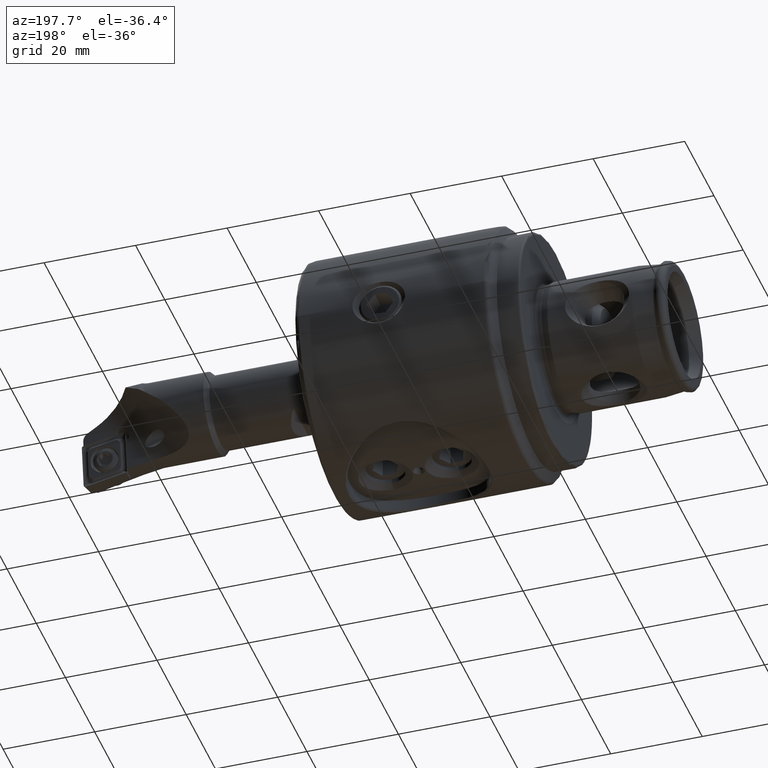
[diagram: clean part render]
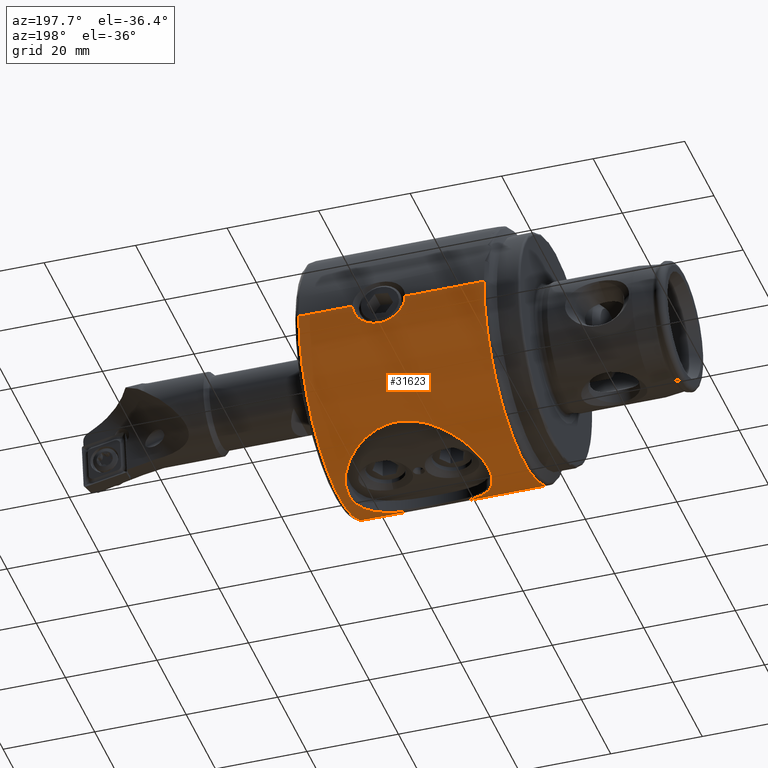
[diagram: same view with one face highlighted and labeled with its STEP entity id]
A machine part, auxiliary view. The second image highlights one B-rep face of the part: STEP entity #31623.
In plain terms, the highlighted cylindrical surface (partial cylindrical patch) has radius 27.5 mm, axis along (1, 0, 0).
Its self-contained STEP definition (entity closure, byte-faithful):
#70 = CARTESIAN_POINT ( 'NONE',  ( 29.47031759198407400, -15.45976539257136100, -22.74303566913118500 ) ) ;
#212 = CARTESIAN_POINT ( 'NONE',  ( 35.85266872100323400, -14.29237492991417800, -23.49421706327876800 ) ) ;
#368 = CARTESIAN_POINT ( 'NONE',  ( 41.51712545688620500, -10.23401923599197600, -25.53661337441702300 ) ) ;
#750 = CARTESIAN_POINT ( 'NONE',  ( 43.81155581890912000, 5.204170427930421300E-015, 0.0000000000000000000 ) ) ;
#814 = VERTEX_POINT ( 'NONE', #3624 ) ;
#2580 = CARTESIAN_POINT ( 'NONE',  ( 27.21911927627223100, 27.11319484966956800, -4.599798752722587200 ) ) ;
#2901 = DIRECTION ( 'NONE',  ( -1.000000000000000000, -1.325327650935781300E-016, 0.0000000000000000000 ) ) ;
#2907 = CARTESIAN_POINT ( 'NONE',  ( 43.81155581890912000, -25.50000000000000400, -10.29563014098697800 ) ) ;
#2909 = CARTESIAN_POINT ( 'NONE',  ( 14.69807028313014300, -1.003391762271209600, -27.50125882917164700 ) ) ;
#3074 = CARTESIAN_POINT ( 'NONE',  ( 15.72297263741436300, -5.564290748410321900, -26.93168007910242400 ) ) ;
#3212 = CARTESIAN_POINT ( 'NONE',  ( 19.90551172862354100, -11.67021204952686000, -24.91345783793792600 ) ) ;
#3230 = B_SPLINE_CURVE_WITH_KNOTS ( 'NONE', 3,
 ( #9900, #2909, #16801, #41571, #20289, #45121, #23884, #3074, #27472, #6553, #31131, #10068, #34592, #13504, #38153, #16946, #41720, #20452, #45286, #24029, #3212, #27656, #6701, #31275, #10202, #34755, #13651, #38305, #17111, #41875, #20606, #45440, #24197, #3346, #27791, #6861, #31425, #10342, #34899, #13815, #38453, #17246, #42048, #20763, #70, #24350, #3503, #27949, #7015, #31594, #10497, #35050, #13960, #38615, #17389, #42192, #20930, #212, #24496, #3642, #28102, #7156, #31743, #10650, #35202, #14094, #38768, #17544, #42337, #21073, #368, #24644, #3788, #28258, #7316, #31885, #10795, #35361, #14240, #38913, #17695, #42490, #21227 ),
 .UNSPECIFIED., .F., .F.,
 ( 4, 2, 2, 1, 1, 2, 2, 2, 2, 1, 2, 2, 2, 2, 2, 2, 2, 2, 2, 1, 2, 2, 2, 2, 2, 2, 2, 2, 2, 1, 1, 2, 2, 2, 2, 2, 1, 2, 2, 2, 2, 1, 1, 2, 2, 4 ),
 ( 0.5000000000000000000, 0.5312499999999985600, 0.5468749999999977800, 0.5546874999999973400, 0.5585937499999971100, 0.5605468749999970000, 0.5624999999999968900, 0.5937499999999952300, 0.6093749999999944500, 0.6171874999999938900, 0.6210937499999936700, 0.6249999999999933400, 0.6562499999999910100, 0.6718749999999897900, 0.6796874999999892300, 0.6835937499999889000, 0.6874999999999885600, 0.7031249999999873400, 0.7109374999999869000, 0.7148437499999865700, 0.7167968749999864600, 0.7187499999999864600, 0.7343749999999856800, 0.7421874999999853500, 0.7460937499999851200, 0.7499999999999849000, 0.7812499999999842300, 0.7968749999999840100, 0.8046874999999837900, 0.8085937499999836800, 0.8105468749999836800, 0.8115234374999836800, 0.8124999999999836800, 0.8437499999999860100, 0.8593749999999873400, 0.8671874999999877900, 0.8710937499999882300, 0.8730468749999883400, 0.8749999999999884500, 0.9062499999999920100, 0.9218749999999935600, 0.9296874999999943400, 0.9335937499999946700, 0.9355468749999948900, 0.9374999999999951200, 1.000000000000000000 ),
 .UNSPECIFIED. ) ;
#3346 = CARTESIAN_POINT ( 'NONE',  ( 25.95205756926393500, -14.91699850290688400, -23.10278709924506300 ) ) ;
#3503 = CARTESIAN_POINT ( 'NONE',  ( 29.84529522257690800, -15.46850219879365100, -22.73709391708959200 ) ) ;
#3624 = CARTESIAN_POINT ( 'NONE',  ( 45.29999517788837000, 8.254059861749133300E-016, -27.49999999999999600 ) ) ;
#3642 = CARTESIAN_POINT ( 'NONE',  ( 36.82156884428738400, -13.88073161975747500, -23.74403830431310100 ) ) ;
#3788 = CARTESIAN_POINT ( 'NONE',  ( 42.96866427553039400, -8.228079468413575600, -26.24380970203637600 ) ) ;
#4249 = DIRECTION ( 'NONE',  ( 1.000000000000000000, 1.325327650935781300E-016, -0.0000000000000000000 ) ) ;
#4425 = DIRECTION ( 'NONE',  ( 1.000000000000000000, 1.325327650935781300E-016, -0.0000000000000000000 ) ) ;
#4443 = CARTESIAN_POINT ( 'NONE',  ( 43.81155581890911300, 27.50000000000000400, 0.0000000000000000000 ) ) ;
#4448 = CARTESIAN_POINT ( 'NONE',  ( 43.81155581890912700, -27.49999999999999600, 3.367778697655221300E-015 ) ) ;
#5584 = EDGE_CURVE ( 'NONE', #29363, #22565, #24799, .T. ) ;
#5902 = CARTESIAN_POINT ( 'NONE',  ( 24.25000000000000400, 27.50000000000000400, -0.3629333865496493500 ) ) ;
#6044 = CARTESIAN_POINT ( 'NONE',  ( 28.22409875202985700, 27.04224561264422300, -4.998238179507892700 ) ) ;
#6460 = CIRCLE ( 'NONE', #8086, 27.50000000000000400 ) ;
#6553 = CARTESIAN_POINT ( 'NONE',  ( 15.84267738723604100, -5.866115968779003400, -26.86712657334667800 ) ) ;
#6701 = CARTESIAN_POINT ( 'NONE',  ( 21.88793115999974100, -13.12826962929749700, -24.16599081870919400 ) ) ;
#6861 = CARTESIAN_POINT ( 'NONE',  ( 26.50230674841630900, -15.05623539580932800, -23.01220939762938800 ) ) ;
#7015 = CARTESIAN_POINT ( 'NONE',  ( 31.99409665241114500, -15.37329808485244000, -22.80281617135698700 ) ) ;
#7098 = CARTESIAN_POINT ( 'NONE',  ( 35.75000000000000000, 27.50000000000000700, -3.984733647497635900E-024 ) ) ;
#7156 = CARTESIAN_POINT ( 'NONE',  ( 38.90834035045008200, -12.58883018609562900, -24.45135048653080300 ) ) ;
#7316 = CARTESIAN_POINT ( 'NONE',  ( 43.57586989865492200, -7.140030525889693900, -26.55790482077802000 ) ) ;
#7704 = EDGE_LOOP ( 'NONE', ( #25298, #38066 ) ) ;
#7946 = ORIENTED_EDGE ( 'NONE', *, *, #10213, .F. ) ;
#8086 = AXIS2_PLACEMENT_3D ( 'NONE', #14264, #14217, #14119 ) ;
#8170 = B_SPLINE_CURVE_WITH_KNOTS ( 'NONE', 3,
 ( #44467, #5902, #9425, #33966, #12877, #37497, #16323, #41083, #19799, #44622, #23372, #2580, #26970, #6044, #30618, #9586, #34116, #13023 ),
 .UNSPECIFIED., .F., .F.,
 ( 4, 2, 2, 2, 2, 2, 2, 2, 4 ),
 ( 0.03014860070866328200, 0.03122699436391833000, 0.03230538801917337600, 0.03338378167442842400, 0.03446217532968347300, 0.03554056898493852100, 0.03661896264019357000, 0.03769735629544861800, 0.03877574995070366700 ),
 .UNSPECIFIED. ) ;
#8283 = CARTESIAN_POINT ( 'NONE',  ( 30.00000000000000000, 26.99515431067581200, -5.245154310675805400 ) ) ;
#9425 = CARTESIAN_POINT ( 'NONE',  ( 24.29110673095988200, 27.49282314987301800, -0.7195943450373116800 ) ) ;
#9586 = CARTESIAN_POINT ( 'NONE',  ( 29.27759524838728900, 27.00130869859583900, -5.213760282829930800 ) ) ;
#9900 = CARTESIAN_POINT ( 'NONE',  ( 14.70004162205537300, 0.03392717610124340600, -27.49997907175061600 ) ) ;
#9933 = B_SPLINE_CURVE_WITH_KNOTS ( 'NONE', 3,
 ( #33482, #33251, #32666, #32607, #32513, #32448, #32405, #32387, #32363, #32262, #32160, #32010, #31971, #31956, #31920, #31859, #31817, #31805, #31718, #31561, #31509, #31495, #31461, #31349, #31338, #31308, #31207, #31193, #31108, #31066, #31049, #30894, #30880, #30786, #30738, #30723, #30686, #30626, #30585, #30568, #30420, #30382, #30319, #30222, #30161, #30101, #30072, #30012, #29755, #29699, #29598, #29484, #29393, #29333, #29238, #29119, #28968, #28867, #28820, #28704, #28655, #28640, #28598, #28533, #28474, #28379, #28339, #28325, #28291, #28237, #28177, #28144, #28071, #28016, #27921, #27871, #27853, #27762, #27723, #27710, #27620, #27567 ),
 .UNSPECIFIED., .F., .F.,
 ( 4, 2, 2, 1, 1, 2, 2, 2, 2, 1, 1, 2, 2, 2, 2, 2, 1, 1, 2, 2, 2, 2, 2, 2, 2, 2, 2, 2, 1, 1, 2, 2, 2, 2, 2, 2, 2, 2, 2, 1, 1, 2, 2, 2, 2, 4 ),
 ( 0.0000000000000000000, 0.03124999999999866800, 0.04687499999999800900, 0.05468749999999768200, 0.05859374999999751600, 0.06054687499999746700, 0.06249999999999741900, 0.09374999999999743300, 0.1093749999999974000, 0.1171874999999973200, 0.1210937499999973100, 0.1230468749999972900, 0.1249999999999972800, 0.1562499999999973600, 0.1718749999999973900, 0.1796874999999973900, 0.1835937499999974200, 0.1855468749999973100, 0.1865234374999971400, 0.1874999999999970000, 0.2187499999999972800, 0.2343749999999973100, 0.2421874999999973400, 0.2460937499999972800, 0.2499999999999972200, 0.2812499999999961100, 0.2968749999999956100, 0.3046874999999952800, 0.3085937499999951200, 0.3105468749999949500, 0.3115234374999950000, 0.3124999999999950000, 0.3437499999999953400, 0.3593749999999955000, 0.3671874999999955600, 0.3710937499999956100, 0.3749999999999956700, 0.4062499999999964500, 0.4218749999999968400, 0.4296874999999970000, 0.4335937499999971100, 0.4355468749999971700, 0.4374999999999972800, 0.4687499999999986100, 0.4843749999999992800, 0.5000000000000000000 ),
 .UNSPECIFIED. ) ;
#10068 = CARTESIAN_POINT ( 'NONE',  ( 16.28019487922203400, -6.921011001236707600, -26.63205686291325900 ) ) ;
#10202 = CARTESIAN_POINT ( 'NONE',  ( 22.95039415743044800, -13.73200617241389800, -23.82645686709768600 ) ) ;
#10213 = EDGE_CURVE ( 'NONE', #29211, #26388, #6460, .T. ) ;
#10317 = AXIS2_PLACEMENT_3D ( 'NONE', #32554, #32403, #32259 ) ;
#10342 = CARTESIAN_POINT ( 'NONE',  ( 26.81138071790070000, -15.12508629886582800, -22.96697689510396500 ) ) ;
#10497 = CARTESIAN_POINT ( 'NONE',  ( 33.97074784510377300, -14.95061476414817900, -23.08162061609228000 ) ) ;
#10526 = B_SPLINE_CURVE_WITH_KNOTS ( 'NONE', 3,
 ( #24871, #30472, #24716, #24679, #24610, #24474, #24064, #24004, #23486, #23326, #23175, #22713, #22111, #21953 ),
 .UNSPECIFIED., .F., .F.,
 ( 4, 2, 2, 2, 2, 2, 4 ),
 ( 0.0006093554491133539400, 0.003394633624065879000, 0.004787272711542141600, 0.006179911799018404100, 0.008965189973970930100, 0.01035782906144719000, 0.01175046814892345300 ),
 .UNSPECIFIED. ) ;
#10621 = ORIENTED_EDGE ( 'NONE', *, *, #20584, .T. ) ;
#10650 = CARTESIAN_POINT ( 'NONE',  ( 39.88232486635831000, -11.81287851725472900, -24.83419722315175400 ) ) ;
#10795 = CARTESIAN_POINT ( 'NONE',  ( 43.92868571668483900, -6.402853105331344000, -26.74468500679037300 ) ) ;
#11325 = CYLINDRICAL_SURFACE ( 'NONE', #16412, 27.49999999999999600 ) ;
#11326 = CARTESIAN_POINT ( 'NONE',  ( 14.70004162205537300, 0.03392717610124340600, -27.49997907175061600 ) ) ;
#11834 = FACE_BOUND ( 'NONE', #7704, .T. ) ;
#11916 = FACE_OUTER_BOUND ( 'NONE', #19325, .T. ) ;
#12501 = B_SPLINE_CURVE_WITH_KNOTS ( 'NONE', 3,
 ( #17981, #18196, #16799, #16735, #16446, #17232, #16436, #16560, #15990, #15677, #15438, #15444, #14985, #14937, #14975, #14755, #14715, #14933, #14475, #14148, #13803, #13591, #13442, #13357 ),
 .UNSPECIFIED., .F., .F.,
 ( 4, 2, 2, 2, 2, 2, 2, 2, 2, 2, 2, 4 ),
 ( 0.004206108868101850900, 0.005288601047019497200, 0.006371093225937154000, 0.007453585404854809800, 0.007994831494313639500, 0.008536077583772467400, 0.009618569762690128500, 0.01015981585214895800, 0.01070106194160779000, 0.01124230803106661900, 0.01178355412052544900, 0.01286604629944311200 ),
 .UNSPECIFIED. ) ;
#12743 = CARTESIAN_POINT ( 'NONE',  ( 7.020725942163703200, 27.50000000000000000, 0.0000000000000000000 ) ) ;
#12877 = CARTESIAN_POINT ( 'NONE',  ( 24.57398746736825900, 27.44511771970983800, -1.766586074952590100 ) ) ;
#13023 = CARTESIAN_POINT ( 'NONE',  ( 30.00000000000000000, 26.99515431067581200, -5.245154310675805400 ) ) ;
#13094 = EDGE_CURVE ( 'NONE', #29363, #22519, #43310, .T. ) ;
#13357 = CARTESIAN_POINT ( 'NONE',  ( 35.75000000000000000, 27.50000000000000700, -3.984733647497635900E-024 ) ) ;
#13442 = CARTESIAN_POINT ( 'NONE',  ( 35.75000000000000700, 27.50000000000000400, -0.3605470336588309500 ) ) ;
#13504 = CARTESIAN_POINT ( 'NONE',  ( 17.57297032963418100, -9.041640392094040000, -25.97475963793414500 ) ) ;
#13535 = CARTESIAN_POINT ( 'NONE',  ( 8.000000000000003600, -27.50000000000000000, 3.367462771788571700E-015 ) ) ;
#13591 = CARTESIAN_POINT ( 'NONE',  ( 35.70942381260739000, 27.49291236798402600, -0.7177404784473353500 ) ) ;
#13651 = CARTESIAN_POINT ( 'NONE',  ( 23.49943897658145500, -14.00364649950352300, -23.66752448167051500 ) ) ;
#13803 = CARTESIAN_POINT ( 'NONE',  ( 35.58730429404513300, 27.47221599307037100, -1.248476630578897200 ) ) ;
#13815 = CARTESIAN_POINT ( 'NONE',  ( 27.44645167844868200, -15.25662035694685200, -22.88015547800905100 ) ) ;
#13960 = CARTESIAN_POINT ( 'NONE',  ( 34.94611089809053100, -14.64207629967243200, -23.27811289858575700 ) ) ;
#14094 = CARTESIAN_POINT ( 'NONE',  ( 40.35196681501913200, -11.39127094592915800, -25.02993786584037700 ) ) ;
#14119 = DIRECTION ( 'NONE',  ( -2.523234146875355500E-016, 1.000000000000000000, 0.0000000000000000000 ) ) ;
#14148 = CARTESIAN_POINT ( 'NONE',  ( 35.53625667546874200, 27.46363339259595900, -1.424010525250717100 ) ) ;
#14217 = DIRECTION ( 'NONE',  ( 1.000000000000000000, 1.325327650935781300E-016, -0.0000000000000000000 ) ) ;
#14240 = CARTESIAN_POINT ( 'NONE',  ( 44.05486005409513000, -6.112547771960303900, -26.81213019585732800 ) ) ;
#14264 = CARTESIAN_POINT ( 'NONE',  ( 47.49100326121872900, 5.691817771476207900E-015, 0.0000000000000000000 ) ) ;
#14475 = CARTESIAN_POINT ( 'NONE',  ( 35.41680926264935200, 27.44390461495796900, -1.763821018137990100 ) ) ;
#14715 = CARTESIAN_POINT ( 'NONE',  ( 35.19370688111086300, 27.40811344671142900, -2.251998105985930600 ) ) ;
#14755 = CARTESIAN_POINT ( 'NONE',  ( 35.10791776104995400, 27.39470183742390200, -2.409133777606550000 ) ) ;
#14793 = LINE ( 'NONE', #2907, #14826 ) ;
#14826 = VECTOR ( 'NONE', #2901, 1000.000000000000000 ) ;
#14933 = CARTESIAN_POINT ( 'NONE',  ( 35.34815152952708000, 27.43271442711138900, -1.929341166751768400 ) ) ;
#14937 = CARTESIAN_POINT ( 'NONE',  ( 34.81597566876839500, 27.35075012730095900, -2.864833916290463900 ) ) ;
#14975 = CARTESIAN_POINT ( 'NONE',  ( 34.91938424915967000, 27.36606750838167600, -2.715135990417011100 ) ) ;
#14985 = CARTESIAN_POINT ( 'NONE',  ( 34.48481783492542300, 27.30341429508409200, -3.294964553211798400 ) ) ;
#15438 = CARTESIAN_POINT ( 'NONE',  ( 33.83472104804263800, 27.22134876665327900, -3.906689397352113500 ) ) ;
#15444 = CARTESIAN_POINT ( 'NONE',  ( 34.23869828220199500, 27.27034865550095300, -3.554474236797072100 ) ) ;
#15677 = CARTESIAN_POINT ( 'NONE',  ( 33.69421053604941100, 27.20511057892565200, -4.017863692200669400 ) ) ;
#15990 = CARTESIAN_POINT ( 'NONE',  ( 33.40146442140899600, 27.17327892394365200, -4.227786984018546700 ) ) ;
#16323 = CARTESIAN_POINT ( 'NONE',  ( 25.07365009423750400, 27.36652919381402800, -2.721411400548695800 ) ) ;
#16412 = AXIS2_PLACEMENT_3D ( 'NONE', #750, #35735, #25050 ) ;
#16436 = CARTESIAN_POINT ( 'NONE',  ( 32.78130637530674100, 27.11321358240335000, -4.599740629544577100 ) ) ;
#16446 = CARTESIAN_POINT ( 'NONE',  ( 31.78256259751550400, 27.04261616887276900, -4.996239996036092800 ) ) ;
#16560 = CARTESIAN_POINT ( 'NONE',  ( 33.24849696452783800, 27.15762369696743400, -4.326888754051739600 ) ) ;
#16735 = CARTESIAN_POINT ( 'NONE',  ( 31.42923983682816700, 27.02484843715245300, -5.090339371783931800 ) ) ;
#16799 = CARTESIAN_POINT ( 'NONE',  ( 30.71776978766669700, 27.00118485635865200, -5.214403544389694100 ) ) ;
#16801 = CARTESIAN_POINT ( 'NONE',  ( 14.79643159263607500, -2.027764954927277600, -27.44378254407033800 ) ) ;
#16946 = CARTESIAN_POINT ( 'NONE',  ( 18.34040868354732000, -10.02045383439118200, -25.61021737518362700 ) ) ;
#17111 = CARTESIAN_POINT ( 'NONE',  ( 23.83435830853971300, -14.15747361917385800, -23.57582346483998800 ) ) ;
#17232 = CARTESIAN_POINT ( 'NONE',  ( 32.45673803742430900, 27.08674971337854800, -4.751157050630625100 ) ) ;
#17246 = CARTESIAN_POINT ( 'NONE',  ( 28.71417195415231700, -15.41472028509263100, -22.77361222183396100 ) ) ;
#17389 = CARTESIAN_POINT ( 'NONE',  ( 35.49102588417972700, -14.43990150692499000, -23.40394817151452100 ) ) ;
#17544 = CARTESIAN_POINT ( 'NONE',  ( 40.62822157312838600, -11.12740922653153900, -25.14822395458208600 ) ) ;
#17695 = CARTESIAN_POINT ( 'NONE',  ( 44.90162041726101400, -4.081533321704430500, -27.26604468947252300 ) ) ;
#17981 = CARTESIAN_POINT ( 'NONE',  ( 30.00000000000000000, 26.99515431067581200, -5.245154310675805400 ) ) ;
#18196 = CARTESIAN_POINT ( 'NONE',  ( 30.35992427497055200, 26.99515431067582200, -5.245154310675806300 ) ) ;
#18228 = CARTESIAN_POINT ( 'NONE',  ( 43.81155581890911300, 27.50000000000000400, 0.0000000000000000000 ) ) ;
#18275 = DIRECTION ( 'NONE',  ( 1.000000000000000000, 1.325327650935781300E-016, -0.0000000000000000000 ) ) ;
#18405 = LINE ( 'NONE', #18228, #18503 ) ;
#18503 = VECTOR ( 'NONE', #18275, 1000.000000000000000 ) ;
#19140 = EDGE_CURVE ( 'NONE', #22565, #35268, #22450, .T. ) ;
#19325 = EDGE_LOOP ( 'NONE', ( #34271, #35956, #38159, #42039, #43566, #45403, #7946, #10621, #20336 ) ) ;
#19682 = EDGE_CURVE ( 'NONE', #34615, #43612, #12501, .T. ) ;
#19799 = CARTESIAN_POINT ( 'NONE',  ( 25.76169426096401300, 27.27027131959468100, -3.555234519992692500 ) ) ;
#19944 = EDGE_CURVE ( 'NONE', #43612, #26388, #18405, .T. ) ;
#20289 = CARTESIAN_POINT ( 'NONE',  ( 15.21890267061809600, -4.033565694316018300, -27.20716093026347000 ) ) ;
#20336 = ORIENTED_EDGE ( 'NONE', *, *, #21548, .T. ) ;
#20452 = CARTESIAN_POINT ( 'NONE',  ( 18.83945658379557000, -10.58195490844765100, -25.38271232748853700 ) ) ;
#20584 = EDGE_CURVE ( 'NONE', #29211, #23801, #14793, .T. ) ;
#20606 = CARTESIAN_POINT ( 'NONE',  ( 24.52128734681567900, -14.45239411025570100, -23.39724984176647000 ) ) ;
#20763 = CARTESIAN_POINT ( 'NONE',  ( 29.34451324683517700, -15.45469154877863000, -22.74648488555608600 ) ) ;
#20930 = CARTESIAN_POINT ( 'NONE',  ( 35.79246467855421800, -14.31751112611306100, -23.47890737890772100 ) ) ;
#21073 = CARTESIAN_POINT ( 'NONE',  ( 40.76584916793849100, -10.99138157891289300, -25.20797273626945800 ) ) ;
#21227 = CARTESIAN_POINT ( 'NONE',  ( 45.29999517788837000, 8.254059861749133300E-016, -27.49999999999999600 ) ) ;
#21548 = EDGE_CURVE ( 'NONE', #23801, #22519, #10526, .T. ) ;
#21953 = CARTESIAN_POINT ( 'NONE',  ( 8.000000000000003600, -27.50000000000000000, 3.367462771788571700E-015 ) ) ;
#22079 = EDGE_CURVE ( 'NONE', #814, #27082, #9933, .T. ) ;
#22111 = CARTESIAN_POINT ( 'NONE',  ( 8.000000000000008900, -27.50000000000000700, -0.4686648634598625200 ) ) ;
#22306 = VECTOR ( 'NONE', #4425, 1000.000000000000000 ) ;
#22450 = LINE ( 'NONE', #4443, #22306 ) ;
#22519 = VERTEX_POINT ( 'NONE', #13535 ) ;
#22565 = VERTEX_POINT ( 'NONE', #12743 ) ;
#22713 = CARTESIAN_POINT ( 'NONE',  ( 8.019211181699727600, -27.48787877297822000, -0.9388556562819343500 ) ) ;
#23175 = CARTESIAN_POINT ( 'NONE',  ( 8.094151329393263000, -27.44061274395849600, -1.864859677665329500 ) ) ;
#23207 = CARTESIAN_POINT ( 'NONE',  ( 47.49100326121872900, -25.50000000000000400, -10.29563014098699000 ) ) ;
#23326 = CARTESIAN_POINT ( 'NONE',  ( 8.149846731713722600, -27.40548924949458300, -2.323213890820429400 ) ) ;
#23372 = CARTESIAN_POINT ( 'NONE',  ( 26.59998119096512100, 27.17200546502118600, -4.238584967952795600 ) ) ;
#23486 = CARTESIAN_POINT ( 'NONE',  ( 8.369161976274659400, -27.26726395009297500, -3.684965647413447300 ) ) ;
#23801 = VERTEX_POINT ( 'NONE', #26254 ) ;
#23884 = CARTESIAN_POINT ( 'NONE',  ( 15.56471378857283700, -5.139540999852449100, -27.01745117766397200 ) ) ;
#24004 = CARTESIAN_POINT ( 'NONE',  ( 8.584844899090633400, -27.13139799823908800, -4.575093025714321200 ) ) ;
#24029 = CARTESIAN_POINT ( 'NONE',  ( 19.09892692259537100, -10.85480608103051200, -25.26723052786514900 ) ) ;
#24064 = CARTESIAN_POINT ( 'NONE',  ( 9.006298453797370500, -26.86653612313056200, -5.885388273318796800 ) ) ;
#24197 = CARTESIAN_POINT ( 'NONE',  ( 25.71016827908900000, -14.84837270041091300, -23.14700045468504900 ) ) ;
#24350 = CARTESIAN_POINT ( 'NONE',  ( 29.72163304518445800, -15.46667229152862800, -22.73833911408616300 ) ) ;
#24474 = CARTESIAN_POINT ( 'NONE',  ( 9.163411355213279200, -26.76788398729555500, -6.318164192611577700 ) ) ;
#24496 = CARTESIAN_POINT ( 'NONE',  ( 35.88443423710480600, -14.27898781953237200, -23.50235533158671300 ) ) ;
#24610 = CARTESIAN_POINT ( 'NONE',  ( 9.503038727933908800, -26.55490551027260100, -7.160712622540183100 ) ) ;
#24644 = CARTESIAN_POINT ( 'NONE',  ( 42.14516649882289600, -9.465725190499737700, -25.83419060622664900 ) ) ;
#24679 = CARTESIAN_POINT ( 'NONE',  ( 9.686155593833751400, -26.44020027679597000, -7.572534285194360700 ) ) ;
#24716 = CARTESIAN_POINT ( 'NONE',  ( 10.27217571970889600, -26.07366573914819700, -8.782016831757443900 ) ) ;
#24799 = CIRCLE ( 'NONE', #10317, 27.50000000000000000 ) ;
#24871 = CARTESIAN_POINT ( 'NONE',  ( 11.19360777238096600, -25.50000000000000700, -10.29563014098697800 ) ) ;
#25050 = DIRECTION ( 'NONE',  ( -2.523234146875356000E-016, 1.000000000000000000, 0.0000000000000000000 ) ) ;
#25298 = ORIENTED_EDGE ( 'NONE', *, *, #22079, .T. ) ;
#26254 = CARTESIAN_POINT ( 'NONE',  ( 11.19360777238096600, -25.50000000000000700, -10.29563014098697800 ) ) ;
#26388 = VERTEX_POINT ( 'NONE', #30731 ) ;
#26970 = CARTESIAN_POINT ( 'NONE',  ( 27.54916410218220300, 27.08629903423255000, -4.753718260667020500 ) ) ;
#27082 = VERTEX_POINT ( 'NONE', #11326 ) ;
#27472 = CARTESIAN_POINT ( 'NONE',  ( 15.79432517801784800, -5.745497750982377000, -26.89317873478052300 ) ) ;
#27567 = CARTESIAN_POINT ( 'NONE',  ( 14.70004162205537300, 0.03392717610124340600, -27.49997907175061600 ) ) ;
#27620 = CARTESIAN_POINT ( 'NONE',  ( 14.70102729151798500, 0.5525866452874720300, -27.49933919304009300 ) ) ;
#27656 = CARTESIAN_POINT ( 'NONE',  ( 20.66997818847698600, -12.30407517782143500, -24.60174865444336600 ) ) ;
#27710 = CARTESIAN_POINT ( 'NONE',  ( 14.72700151456010300, 1.065108937477512000, -27.48410994760450900 ) ) ;
#27723 = CARTESIAN_POINT ( 'NONE',  ( 14.82894307425207700, 2.084719508083262300, -27.42562125519356500 ) ) ;
#27762 = CARTESIAN_POINT ( 'NONE',  ( 14.90490774316048200, 2.590404011115629700, -27.38236392218654600 ) ) ;
#27791 = CARTESIAN_POINT ( 'NONE',  ( 26.31831909095991400, -15.01126814591513400, -23.04155447606836700 ) ) ;
#27794 = EDGE_CURVE ( 'NONE', #27082, #814, #3230, .T. ) ;
#27853 = CARTESIAN_POINT ( 'NONE',  ( 15.20778341707293400, 4.092912438076636400, -27.21239157820765100 ) ) ;
#27871 = CARTESIAN_POINT ( 'NONE',  ( 15.50967608926423600, 5.075128310754239500, -27.04545491780329100 ) ) ;
#27921 = CARTESIAN_POINT ( 'NONE',  ( 15.93666108198274500, 6.092683400339816500, -26.81665476687735300 ) ) ;
#27949 = CARTESIAN_POINT ( 'NONE',  ( 30.99021600403338200, -15.47045168070321400, -22.73576761817724500 ) ) ;
#28016 = CARTESIAN_POINT ( 'NONE',  ( 15.96082931735225500, 6.149327301495832300, -26.80371820311564000 ) ) ;
#28071 = CARTESIAN_POINT ( 'NONE',  ( 16.01104247926794600, 6.265182894924792300, -26.77687470684540100 ) ) ;
#28102 = CARTESIAN_POINT ( 'NONE',  ( 37.68403794162171700, -13.41543024379324200, -24.01384966330906700 ) ) ;
#28144 = CARTESIAN_POINT ( 'NONE',  ( 16.08729038441007800, 6.438321349165166300, -26.73616498086898500 ) ) ;
#28177 = CARTESIAN_POINT ( 'NONE',  ( 16.27169929895529800, 6.837787563937697000, -26.63814001109984300 ) ) ;
#28237 = CARTESIAN_POINT ( 'NONE',  ( 16.44090203007450400, 7.172404547457763800, -26.54917313670870300 ) ) ;
#28258 = CARTESIAN_POINT ( 'NONE',  ( 43.22340290339997200, -7.801355412801985500, -26.37419631465025600 ) ) ;
#28291 = CARTESIAN_POINT ( 'NONE',  ( 16.79415808861061900, 7.831213049851119700, -26.36531864228366800 ) ) ;
#28325 = CARTESIAN_POINT ( 'NONE',  ( 17.04946292269832100, 8.256509783833664100, -26.23486105528769800 ) ) ;
#28339 = CARTESIAN_POINT ( 'NONE',  ( 17.87477981015234000, 9.490607935530263700, -25.82498624621550600 ) ) ;
#28379 = CARTESIAN_POINT ( 'NONE',  ( 18.50419424870952400, 10.25751792080555600, -25.52717701728468200 ) ) ;
#28474 = CARTESIAN_POINT ( 'NONE',  ( 19.30138906987269800, 11.05889265217104800, -25.17856870561744400 ) ) ;
#28533 = CARTESIAN_POINT ( 'NONE',  ( 19.39354693284500500, 11.14936394160237900, -25.13863370468238000 ) ) ;
#28598 = CARTESIAN_POINT ( 'NONE',  ( 19.57652830348423500, 11.32464937543427100, -25.06015836669778500 ) ) ;
#28640 = CARTESIAN_POINT ( 'NONE',  ( 19.66876775724234600, 11.41088689409851400, -25.02099884459631300 ) ) ;
#28655 = CARTESIAN_POINT ( 'NONE',  ( 19.94773242383215000, 11.66542056395568000, -24.90387228185279900 ) ) ;
#28704 = CARTESIAN_POINT ( 'NONE',  ( 20.13670394197931700, 11.82953760557787800, -24.82625855543413700 ) ) ;
#28820 = CARTESIAN_POINT ( 'NONE',  ( 20.71260371768269300, 12.30547607558739500, -24.59572226720198900 ) ) ;
#28867 = CARTESIAN_POINT ( 'NONE',  ( 21.10851719650081600, 12.60088396255005300, -24.44512487926034400 ) ) ;
#28968 = CARTESIAN_POINT ( 'NONE',  ( 22.33219851800273800, 13.42396903373098200, -24.00901254492920600 ) ) ;
#29119 = CARTESIAN_POINT ( 'NONE',  ( 23.19590724573411900, 13.88856494670944600, -23.73947648243860400 ) ) ;
#29211 = VERTEX_POINT ( 'NONE', #23207 ) ;
#29238 = CARTESIAN_POINT ( 'NONE',  ( 24.13602558814752900, 14.28762389747059700, -23.49710628013902500 ) ) ;
#29333 = CARTESIAN_POINT ( 'NONE',  ( 24.16744824901936900, 14.30084979409777900, -23.48905935712645700 ) ) ;
#29363 = VERTEX_POINT ( 'NONE', #38247 ) ;
#29393 = CARTESIAN_POINT ( 'NONE',  ( 24.22740250672741200, 14.32585032759769700, -23.47382002800621900 ) ) ;
#29484 = CARTESIAN_POINT ( 'NONE',  ( 24.31737705550705900, 14.36303334482503400, -23.45111366791405100 ) ) ;
#29598 = CARTESIAN_POINT ( 'NONE',  ( 24.52761980484940500, 14.44757499191888100, -23.39921075834605800 ) ) ;
#29699 = CARTESIAN_POINT ( 'NONE',  ( 24.70834582232538800, 14.51625527514539500, -23.35660587143873800 ) ) ;
#29755 = CARTESIAN_POINT ( 'NONE',  ( 25.07048845275889100, 14.64862033310804900, -23.27399283586950700 ) ) ;
#30012 = CARTESIAN_POINT ( 'NONE',  ( 25.31283766702324200, 14.73020399711122500, -23.22238189032960100 ) ) ;
#30072 = CARTESIAN_POINT ( 'NONE',  ( 26.04264769174232400, 14.95534099805867200, -23.07855059268378300 ) ) ;
#30101 = CARTESIAN_POINT ( 'NONE',  ( 26.53287088412310600, 15.07929819253336100, -22.99736389851699100 ) ) ;
#30161 = CARTESIAN_POINT ( 'NONE',  ( 28.01458998896965400, 15.37509270871552200, -22.80158865603476000 ) ) ;
#30222 = CARTESIAN_POINT ( 'NONE',  ( 29.01713542913958600, 15.47118173578704700, -22.73527093909929800 ) ) ;
#30319 = CARTESIAN_POINT ( 'NONE',  ( 30.16157334088703100, 15.46839501372473100, -22.73716683845255200 ) ) ;
#30382 = CARTESIAN_POINT ( 'NONE',  ( 30.28612724247648600, 15.46655944329251000, -22.73841585524235100 ) ) ;
#30420 = CARTESIAN_POINT ( 'NONE',  ( 30.53728107610206900, 15.45981724373943000, -22.74300040471825600 ) ) ;
#30472 = CARTESIAN_POINT ( 'NONE',  ( 10.71158833306179900, -25.79951110099507300, -9.553807351047261400 ) ) ;
#30568 = CARTESIAN_POINT ( 'NONE',  ( 30.66267138093623500, 15.45491355980189300, -22.74633393369825600 ) ) ;
#30585 = CARTESIAN_POINT ( 'NONE',  ( 31.03828245950294500, 15.43559869618646900, -22.75944935949311100 ) ) ;
#30618 = CARTESIAN_POINT ( 'NONE',  ( 28.56983074280649500, 27.02490990631037700, -5.090011029407413000 ) ) ;
#30626 = CARTESIAN_POINT ( 'NONE',  ( 31.28794339729966400, 15.41658494902895000, -22.77234796633814900 ) ) ;
#30686 = CARTESIAN_POINT ( 'NONE',  ( 32.03468686694649400, 15.34103862641623600, -22.82337020304515500 ) ) ;
#30723 = CARTESIAN_POINT ( 'NONE',  ( 32.52953005505330700, 15.26601996964195600, -22.87385079168490500 ) ) ;
#30731 = CARTESIAN_POINT ( 'NONE',  ( 47.49100326121872200, 27.50000000000001100, 0.0000000000000000000 ) ) ;
#30738 = CARTESIAN_POINT ( 'NONE',  ( 34.00510224440056100, 14.96554943591436000, -23.07249429724249600 ) ) ;
#30786 = CARTESIAN_POINT ( 'NONE',  ( 34.97687387066783800, 14.66492818257501800, -23.26838395571009200 ) ) ;
#30880 = CARTESIAN_POINT ( 'NONE',  ( 35.96669696966780100, 14.24402868446926700, -23.52355987743391500 ) ) ;
#30894 = CARTESIAN_POINT ( 'NONE',  ( 35.99304528215109400, 14.23272845958640600, -23.53039825182709400 ) ) ;
#31049 = CARTESIAN_POINT ( 'NONE',  ( 36.04925519741424000, 14.20844126871472900, -23.54507162884396400 ) ) ;
#31066 = CARTESIAN_POINT ( 'NONE',  ( 36.13343703372515800, 14.17177785964673800, -23.56718375081922900 ) ) ;
#31108 = CARTESIAN_POINT ( 'NONE',  ( 36.32893006236405900, 14.08459760486117900, -23.61948585792816100 ) ) ;
#31131 = CARTESIAN_POINT ( 'NONE',  ( 15.86795602533153700, -5.928043507343089000, -26.85352642773099100 ) ) ;
#31193 = CARTESIAN_POINT ( 'NONE',  ( 36.49489907647761600, 14.00705984038861000, -23.66550339841234100 ) ) ;
#31207 = CARTESIAN_POINT ( 'NONE',  ( 36.82470851936400200, 13.84819809206733200, -23.75905123301087600 ) ) ;
#31275 = CARTESIAN_POINT ( 'NONE',  ( 22.30579103079776700, -13.38191510122823400, -24.02595491669452000 ) ) ;
#31308 = CARTESIAN_POINT ( 'NONE',  ( 37.04174336750065800, 13.73724220559814100, -23.82343467455611500 ) ) ;
#31338 = CARTESIAN_POINT ( 'NONE',  ( 37.68433357054783500, 13.38892366995376900, -24.02203520504850300 ) ) ;
#31349 = CARTESIAN_POINT ( 'NONE',  ( 38.10137458409558800, 13.13611185460196200, -24.16172277448160700 ) ) ;
#31425 = CARTESIAN_POINT ( 'NONE',  ( 26.68757975078525700, -15.09797486120003800, -22.98480842510874900 ) ) ;
#31461 = CARTESIAN_POINT ( 'NONE',  ( 39.31844025928757000, 12.31332004852063700, -24.59709896985347300 ) ) ;
#31495 = CARTESIAN_POINT ( 'NONE',  ( 40.08440755548068100, 11.67892871343816800, -24.90945082206423700 ) ) ;
#31509 = CARTESIAN_POINT ( 'NONE',  ( 40.84999987329667400, 10.90651709310040500, -25.24480814893670900 ) ) ;
#31561 = CARTESIAN_POINT ( 'NONE',  ( 40.89316418453749700, 10.86244225873512000, -25.26380319770310800 ) ) ;
#31594 = CARTESIAN_POINT ( 'NONE',  ( 33.47917755560251900, -15.07537207608124400, -22.99994210004269500 ) ) ;
#31623 = ADVANCED_FACE ( 'NONE', ( #11916, #11834 ), #11325, .T. ) ;
#31718 = CARTESIAN_POINT ( 'NONE',  ( 40.98043463061217300, 10.77228931498304800, -25.30237512074569800 ) ) ;
#31743 = CARTESIAN_POINT ( 'NONE',  ( 39.30487428053068300, -12.29184013695256900, -24.60257036114047600 ) ) ;
#31805 = CARTESIAN_POINT ( 'NONE',  ( 41.11041159233359100, 10.63641729656370000, -25.36008009271790100 ) ) ;
#31817 = CARTESIAN_POINT ( 'NONE',  ( 41.40719021794942000, 10.31487469942093000, -25.49359376660405400 ) ) ;
#31859 = CARTESIAN_POINT ( 'NONE',  ( 41.65042740836157300, 10.03150703274821600, -25.60588431306191400 ) ) ;
#31885 = CARTESIAN_POINT ( 'NONE',  ( 43.74469315964505300, -6.804061577049823000, -26.64678871611953400 ) ) ;
#31920 = CARTESIAN_POINT ( 'NONE',  ( 42.12204247093632100, 9.454356630431892200, -25.82701918364868000 ) ) ;
#31956 = CARTESIAN_POINT ( 'NONE',  ( 42.41664008832012200, 9.055695606580968600, -25.96985420401706400 ) ) ;
#31971 = CARTESIAN_POINT ( 'NONE',  ( 43.24099566747342000, 7.817724418053237500, -26.37970784734328000 ) ) ;
#32010 = CARTESIAN_POINT ( 'NONE',  ( 43.71131635624481500, 6.936273785861912300, -26.62817265733501800 ) ) ;
#32160 = CARTESIAN_POINT ( 'NONE',  ( 44.12682928465045500, 5.940911560888666000, -26.85068284662424900 ) ) ;
#32259 = DIRECTION ( 'NONE',  ( 1.261617073437678000E-016, -1.000000000000000000, 0.0000000000000000000 ) ) ;
#32262 = CARTESIAN_POINT ( 'NONE',  ( 44.15188060471180600, 5.879868977631598900, -26.86411924026101500 ) ) ;
#32363 = CARTESIAN_POINT ( 'NONE',  ( 44.20020514298114700, 5.759981282577758300, -26.89007953453150500 ) ) ;
#32387 = CARTESIAN_POINT ( 'NONE',  ( 44.27152323162819400, 5.579856452952895100, -26.92845366079532400 ) ) ;
#32403 = DIRECTION ( 'NONE',  ( 1.000000000000000000, 1.325327650935781300E-016, -0.0000000000000000000 ) ) ;
#32405 = CARTESIAN_POINT ( 'NONE',  ( 44.42975107383888700, 5.157535559544175600, -27.01400012019204400 ) ) ;
#32448 = CARTESIAN_POINT ( 'NONE',  ( 44.55135031350685900, 4.792148051983929200, -27.08038113517700300 ) ) ;
#32513 = CARTESIAN_POINT ( 'NONE',  ( 44.77584929273065500, 4.057069869147710500, -27.20362265565356800 ) ) ;
#32554 = CARTESIAN_POINT ( 'NONE',  ( 7.020725942163706700, 3.281800142779248400E-016, 0.0000000000000000000 ) ) ;
#32607 = CARTESIAN_POINT ( 'NONE',  ( 44.90058261206369400, 3.561275964319004800, -27.27308816519576600 ) ) ;
#32666 = CARTESIAN_POINT ( 'NONE',  ( 45.19998456961444300, 2.058642756545180100, -27.44135725949494300 ) ) ;
#33251 = CARTESIAN_POINT ( 'NONE',  ( 45.29985520738368600, 1.036483540348173100, -27.50000000000000400 ) ) ;
#33482 = CARTESIAN_POINT ( 'NONE',  ( 45.29999517788837000, 8.254059861749133300E-016, -27.49999999999999600 ) ) ;
#33966 = CARTESIAN_POINT ( 'NONE',  ( 24.45226374057536800, 27.46550945160747400, -1.420891035675672500 ) ) ;
#34116 = CARTESIAN_POINT ( 'NONE',  ( 29.64143846758448900, 26.99515431067581500, -5.245154310675807200 ) ) ;
#34271 = ORIENTED_EDGE ( 'NONE', *, *, #13094, .F. ) ;
#34592 = CARTESIAN_POINT ( 'NONE',  ( 16.74888480790406900, -7.801969806484595300, -26.38440569829649400 ) ) ;
#34615 = VERTEX_POINT ( 'NONE', #8283 ) ;
#34755 = CARTESIAN_POINT ( 'NONE',  ( 23.16823075304729000, -13.84363997757875000, -23.76171192623343500 ) ) ;
#34899 = CARTESIAN_POINT ( 'NONE',  ( 26.87175494017929700, -15.13793990986194700, -22.95850659262815400 ) ) ;
#35050 = CARTESIAN_POINT ( 'NONE',  ( 34.70291826201181400, -14.72413255877649300, -23.22623394815383000 ) ) ;
#35202 = CARTESIAN_POINT ( 'NONE',  ( 40.07191667675196100, -11.64764542676020100, -24.91220041140628500 ) ) ;
#35268 = VERTEX_POINT ( 'NONE', #39247 ) ;
#35361 = CARTESIAN_POINT ( 'NONE',  ( 44.00476083096290800, -6.228932596333806700, -26.78533114625300400 ) ) ;
#35650 = EDGE_CURVE ( 'NONE', #35268, #34615, #8170, .T. ) ;
#35735 = DIRECTION ( 'NONE',  ( 1.000000000000000000, 1.325327650935781300E-016, -0.0000000000000000000 ) ) ;
#35956 = ORIENTED_EDGE ( 'NONE', *, *, #5584, .T. ) ;
#37497 = CARTESIAN_POINT ( 'NONE',  ( 24.88367301443194200, 27.39578678981512300, -2.413747952032078400 ) ) ;
#38066 = ORIENTED_EDGE ( 'NONE', *, *, #27794, .T. ) ;
#38153 = CARTESIAN_POINT ( 'NONE',  ( 17.86784060832872700, -9.441272812901997800, -25.83182695586294000 ) ) ;
#38159 = ORIENTED_EDGE ( 'NONE', *, *, #19140, .T. ) ;
#38247 = CARTESIAN_POINT ( 'NONE',  ( 7.020725942163710300, -27.50000000000000400, 3.367778697655222100E-015 ) ) ;
#38305 = CARTESIAN_POINT ( 'NONE',  ( 23.61058393944432900, -14.05574125476746300, -23.63661670167562800 ) ) ;
#38453 = CARTESIAN_POINT ( 'NONE',  ( 27.95494732679771100, -15.33550402259404400, -22.82709742313830100 ) ) ;
#38615 = CARTESIAN_POINT ( 'NONE',  ( 35.30960359787265200, -14.50896457123174200, -23.36113613872248600 ) ) ;
#38768 = CARTESIAN_POINT ( 'NONE',  ( 40.49090748982187900, -11.26095257966465000, -25.08898924964961800 ) ) ;
#38913 = CARTESIAN_POINT ( 'NONE',  ( 44.07910839078482500, -6.055318333872846500, -26.82511651120249500 ) ) ;
#39247 = CARTESIAN_POINT ( 'NONE',  ( 24.25000000000000400, 27.50000000000000000, 8.111135985064654500E-020 ) ) ;
#41083 = CARTESIAN_POINT ( 'NONE',  ( 25.51450786592617300, 27.30350855360389800, -3.294149479029560500 ) ) ;
#41571 = CARTESIAN_POINT ( 'NONE',  ( 15.09447252954174500, -3.535683881416043400, -27.27644949861249300 ) ) ;
#41720 = CARTESIAN_POINT ( 'NONE',  ( 18.58425838545080600, -10.30498013254088700, -25.49760760204819500 ) ) ;
#41875 = CARTESIAN_POINT ( 'NONE',  ( 23.94512734165802900, -14.20631666677474000, -23.54641966399734400 ) ) ;
#42039 = ORIENTED_EDGE ( 'NONE', *, *, #35650, .T. ) ;
#42048 = CARTESIAN_POINT ( 'NONE',  ( 28.96666035574235600, -15.43460220574143800, -22.76012558878806400 ) ) ;
#42192 = CARTESIAN_POINT ( 'NONE',  ( 35.70211810693265200, -14.35489641416849900, -23.45609565515850300 ) ) ;
#42337 = CARTESIAN_POINT ( 'NONE',  ( 40.71940283055577900, -11.03766059756074500, -25.18774409703199500 ) ) ;
#42490 = CARTESIAN_POINT ( 'NONE',  ( 45.30027447734121900, -2.068216345930793800, -27.49999999999999600 ) ) ;
#43156 = VECTOR ( 'NONE', #4249, 1000.000000000000000 ) ;
#43310 = LINE ( 'NONE', #4448, #43156 ) ;
#43566 = ORIENTED_EDGE ( 'NONE', *, *, #19682, .T. ) ;
#43612 = VERTEX_POINT ( 'NONE', #7098 ) ;
#44467 = CARTESIAN_POINT ( 'NONE',  ( 24.25000000000000400, 27.50000000000000000, 8.111135985064654500E-020 ) ) ;
#44622 = CARTESIAN_POINT ( 'NONE',  ( 26.30694746799509400, 27.20419539892964200, -4.029782008162591500 ) ) ;
#45121 = CARTESIAN_POINT ( 'NONE',  ( 15.44317262539430200, -4.772239705334766500, -27.08390744923507000 ) ) ;
#45286 = CARTESIAN_POINT ( 'NONE',  ( 19.01211060412350000, -10.76493302647735800, -25.30565295976208500 ) ) ;
#45403 = ORIENTED_EDGE ( 'NONE', *, *, #19944, .T. ) ;
#45440 = CARTESIAN_POINT ( 'NONE',  ( 24.99135558143130400, -14.62487509397924300, -23.28935885943403500 ) ) ;